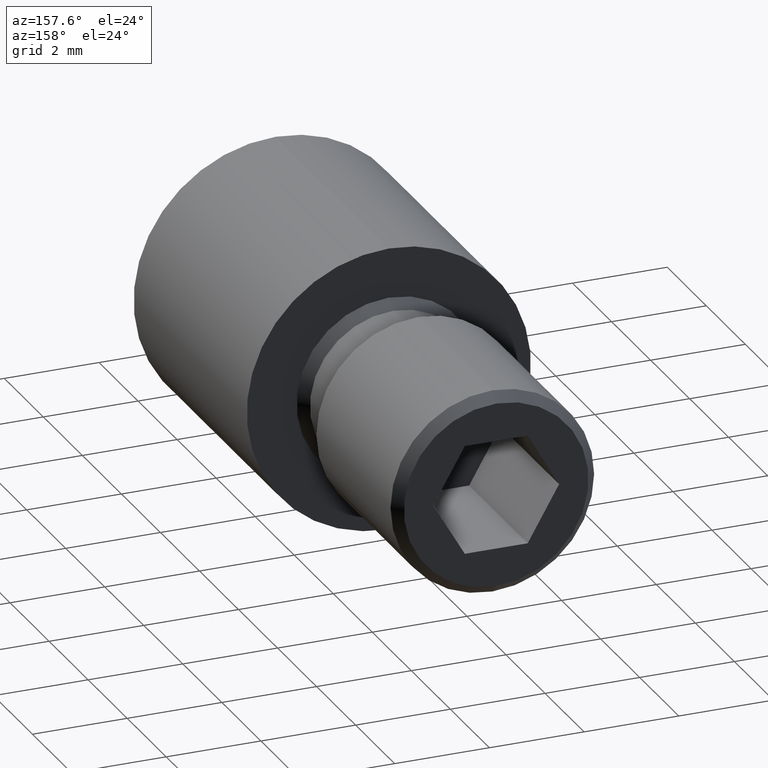
[diagram: clean part render]
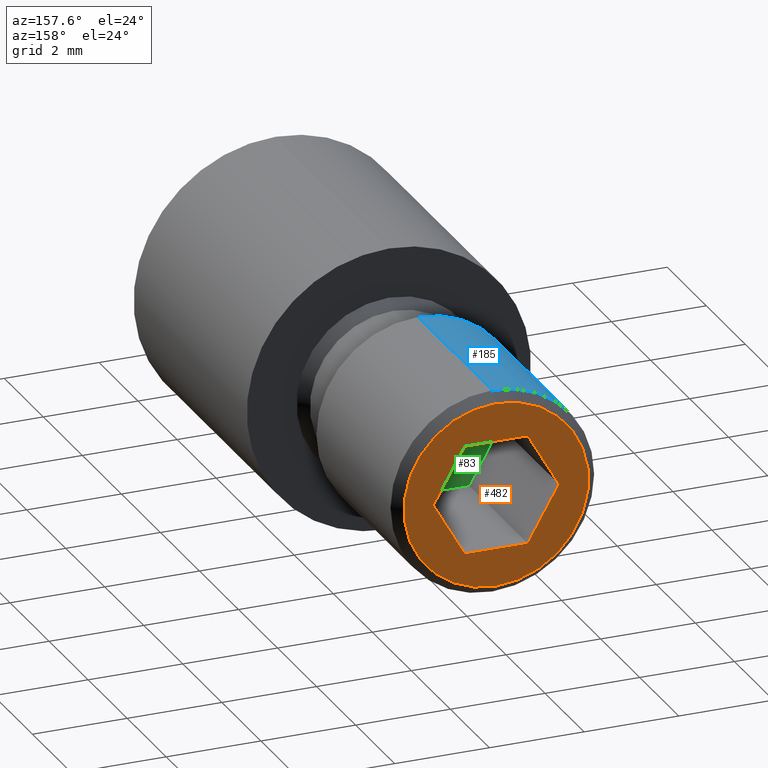
[diagram: same view with three faces highlighted in distinct colors, each labeled with its STEP entity id]
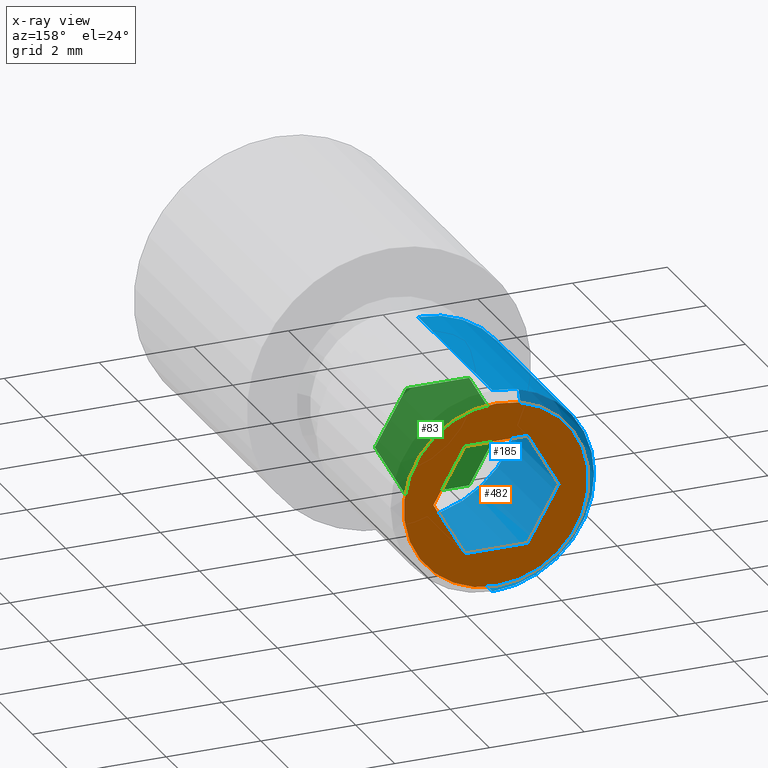
[diagram: x-ray of the same camera — body ghosted, the three highlighted faces saturated]
A machine part, auxiliary view with three faces highlighted in distinct colors.
The next image is the same camera in x-ray (body ghosted, the three faces saturated) — at least one of them is partly hidden behind the body in this view.
Their STEP definitions:

[orange] entity #482 — the highlighted planar face has unit normal (0, 1, 0).
#8 = DIRECTION ( 'NONE',  ( 0.0000000000000000000, 0.0000000000000000000, 1.000000000000000000 ) ) ;
#13 = VERTEX_POINT ( 'NONE', #26 ) ;
#23 = VERTEX_POINT ( 'NONE', #701 ) ;
#24 = DIRECTION ( 'NONE',  ( -0.4999999999999998300, 0.0000000000000000000, 0.8660254037844387100 ) ) ;
#26 = CARTESIAN_POINT ( 'NONE',  ( 1.327905619136139800, 11.50000000000000000, -2.080547780227561100E-016 ) ) ;
#37 = VERTEX_POINT ( 'NONE', #609 ) ;
#66 = CARTESIAN_POINT ( 'NONE',  ( 1.327905619136139800, 11.50000000000000000, -2.080547780227561100E-016 ) ) ;
#67 = PLANE ( 'NONE',  #891 ) ;
#86 = DIRECTION ( 'NONE',  ( 0.0000000000000000000, 1.000000000000000000, 0.0000000000000000000 ) ) ;
#92 = DIRECTION ( 'NONE',  ( 0.0000000000000000000, 1.000000000000000000, 0.0000000000000000000 ) ) ;
#115 = CIRCLE ( 'NONE', #762, 1.950000000000000400 ) ;
#116 = DIRECTION ( 'NONE',  ( 0.4999999999999998900, 0.0000000000000000000, 0.8660254037844387100 ) ) ;
#137 = DIRECTION ( 'NONE',  ( -0.4999999999999998900, 0.0000000000000000000, -0.8660254037844387100 ) ) ;
#154 = DIRECTION ( 'NONE',  ( 0.0000000000000000000, -0.0000000000000000000, 1.000000000000000000 ) ) ;
#166 = ORIENTED_EDGE ( 'NONE', *, *, #613, .F. ) ;
#177 = CARTESIAN_POINT ( 'NONE',  ( 0.0000000000000000000, 11.50000000000000000, 0.0000000000000000000 ) ) ;
#188 = CARTESIAN_POINT ( 'NONE',  ( -0.6639528095680696800, 11.50000000000000000, 1.150000000000000100 ) ) ;
#200 = EDGE_CURVE ( 'NONE', #426, #37, #937, .T. ) ;
#216 = ORIENTED_EDGE ( 'NONE', *, *, #200, .T. ) ;
#218 = CARTESIAN_POINT ( 'NONE',  ( 0.6639528095680703500, 11.50000000000000000, -1.150000000000000100 ) ) ;
#224 = VERTEX_POINT ( 'NONE', #188 ) ;
#260 = VECTOR ( 'NONE', #137, 1000.000000000000000 ) ;
#285 = VECTOR ( 'NONE', #116, 1000.000000000000000 ) ;
#293 = VECTOR ( 'NONE', #24, 1000.000000000000000 ) ;
#340 = FACE_BOUND ( 'NONE', #884, .T. ) ;
#356 = ORIENTED_EDGE ( 'NONE', *, *, #886, .F. ) ;
#358 = CARTESIAN_POINT ( 'NONE',  ( -0.6639528095680691200, 11.50000000000000000, -1.150000000000000800 ) ) ;
#381 = CARTESIAN_POINT ( 'NONE',  ( 0.0000000000000000000, 11.50000000000000000, 0.0000000000000000000 ) ) ;
#412 = ORIENTED_EDGE ( 'NONE', *, *, #803, .F. ) ;
#426 = VERTEX_POINT ( 'NONE', #878 ) ;
#461 = ORIENTED_EDGE ( 'NONE', *, *, #683, .F. ) ;
#470 = ORIENTED_EDGE ( 'NONE', *, *, #473, .T. ) ;
#472 = CARTESIAN_POINT ( 'NONE',  ( 0.6639528095680696800, 11.50000000000000000, 1.150000000000000600 ) ) ;
#473 = EDGE_CURVE ( 'NONE', #37, #426, #115, .T. ) ;
#478 = LINE ( 'NONE', #625, #285 ) ;
#480 = DIRECTION ( 'NONE',  ( 0.0000000000000000000, 1.000000000000000000, 0.0000000000000000000 ) ) ;
#482 = ADVANCED_FACE ( 'NONE', ( #870, #340 ), #67, .T. ) ;
#493 = VECTOR ( 'NONE', #796, 1000.000000000000000 ) ;
#501 = EDGE_CURVE ( 'NONE', #224, #743, #709, .T. ) ;
#508 = LINE ( 'NONE', #786, #708 ) ;
#531 = DIRECTION ( 'NONE',  ( 1.000000000000000000, 0.0000000000000000000, 3.265901301602519900E-016 ) ) ;
#550 = LINE ( 'NONE', #66, #260 ) ;
#604 = LINE ( 'NONE', #676, #293 ) ;
#609 = CARTESIAN_POINT ( 'NONE',  ( 0.0000000000000000000, 11.50000000000000000, -1.950000000000000400 ) ) ;
#613 = EDGE_CURVE ( 'NONE', #814, #863, #604, .T. ) ;
#625 = CARTESIAN_POINT ( 'NONE',  ( -1.327905619136139100, 11.50000000000000000, 1.526590741648259500E-016 ) ) ;
#630 = DIRECTION ( 'NONE',  ( 0.0000000000000000000, 0.0000000000000000000, 1.000000000000000000 ) ) ;
#668 = ORIENTED_EDGE ( 'NONE', *, *, #501, .F. ) ;
#676 = CARTESIAN_POINT ( 'NONE',  ( -0.6639528095680691200, 11.50000000000000000, -1.150000000000000800 ) ) ;
#683 = EDGE_CURVE ( 'NONE', #863, #224, #478, .T. ) ;
#687 = ORIENTED_EDGE ( 'NONE', *, *, #817, .F. ) ;
#701 = CARTESIAN_POINT ( 'NONE',  ( 0.6639528095680703500, 11.50000000000000000, -1.150000000000000100 ) ) ;
#708 = VECTOR ( 'NONE', #932, 1000.000000000000100 ) ;
#709 = LINE ( 'NONE', #816, #880 ) ;
#721 = CARTESIAN_POINT ( 'NONE',  ( -1.327905619136139100, 11.50000000000000000, 1.526590741648259500E-016 ) ) ;
#743 = VERTEX_POINT ( 'NONE', #472 ) ;
#762 = AXIS2_PLACEMENT_3D ( 'NONE', #818, #86, #8 ) ;
#784 = AXIS2_PLACEMENT_3D ( 'NONE', #177, #480, #630 ) ;
#786 = CARTESIAN_POINT ( 'NONE',  ( 0.6639528095680696800, 11.50000000000000000, 1.150000000000000600 ) ) ;
#796 = DIRECTION ( 'NONE',  ( -1.000000000000000000, 0.0000000000000000000, -4.898851952403779800E-016 ) ) ;
#803 = EDGE_CURVE ( 'NONE', #743, #13, #508, .T. ) ;
#814 = VERTEX_POINT ( 'NONE', #358 ) ;
#816 = CARTESIAN_POINT ( 'NONE',  ( -0.6639528095680696800, 11.50000000000000000, 1.150000000000000100 ) ) ;
#817 = EDGE_CURVE ( 'NONE', #23, #814, #842, .T. ) ;
#818 = CARTESIAN_POINT ( 'NONE',  ( 0.0000000000000000000, 11.50000000000000000, 0.0000000000000000000 ) ) ;
#842 = LINE ( 'NONE', #218, #493 ) ;
#863 = VERTEX_POINT ( 'NONE', #721 ) ;
#870 = FACE_OUTER_BOUND ( 'NONE', #904, .T. ) ;
#878 = CARTESIAN_POINT ( 'NONE',  ( 2.510525938252074200E-016, 11.50000000000000000, 1.950000000000000400 ) ) ;
#880 = VECTOR ( 'NONE', #531, 1000.000000000000000 ) ;
#884 = EDGE_LOOP ( 'NONE', ( #356, #412, #668, #461, #166, #687 ) ) ;
#886 = EDGE_CURVE ( 'NONE', #13, #23, #550, .T. ) ;
#891 = AXIS2_PLACEMENT_3D ( 'NONE', #381, #92, #154 ) ;
#904 = EDGE_LOOP ( 'NONE', ( #470, #216 ) ) ;
#932 = DIRECTION ( 'NONE',  ( 0.4999999999999999400, 0.0000000000000000000, -0.8660254037844386000 ) ) ;
#937 = CIRCLE ( 'NONE', #784, 1.950000000000000400 ) ;

[blue] entity #185 — the highlighted cylindrical surface (partial cylindrical patch) has radius 2.15 mm, axis along (-0, -1, -0).
#10 = CYLINDRICAL_SURFACE ( 'NONE', #178, 2.149999999999999900 ) ;
#11 = AXIS2_PLACEMENT_3D ( 'NONE', #825, #897, #20 ) ;
#12 = VERTEX_POINT ( 'NONE', #388 ) ;
#14 = VERTEX_POINT ( 'NONE', #685 ) ;
#20 = DIRECTION ( 'NONE',  ( 0.0000000000000000000, 0.0000000000000000000, 1.000000000000000000 ) ) ;
#32 = ORIENTED_EDGE ( 'NONE', *, *, #726, .F. ) ;
#59 = LINE ( 'NONE', #261, #644 ) ;
#178 = AXIS2_PLACEMENT_3D ( 'NONE', #402, #907, #849 ) ;
#185 = ADVANCED_FACE ( 'NONE', ( #607 ), #10, .T. ) ;
#261 = CARTESIAN_POINT ( 'NONE',  ( 2.632990618166809200E-016, 11.50000000000000000, 2.149999999999999900 ) ) ;
#266 = CARTESIAN_POINT ( 'NONE',  ( 0.0000000000000000000, 11.29999999999999900, -2.149999999999999900 ) ) ;
#276 = CARTESIAN_POINT ( 'NONE',  ( 0.0000000000000000000, 7.500000000000000000, 0.0000000000000000000 ) ) ;
#280 = DIRECTION ( 'NONE',  ( 0.0000000000000000000, 0.0000000000000000000, 1.000000000000000000 ) ) ;
#297 = EDGE_CURVE ( 'NONE', #14, #851, #684, .T. ) ;
#309 = EDGE_LOOP ( 'NONE', ( #32, #427, #864, #792 ) ) ;
#346 = VERTEX_POINT ( 'NONE', #266 ) ;
#388 = CARTESIAN_POINT ( 'NONE',  ( 2.632990618166809200E-016, 11.29999999999999900, 2.149999999999999900 ) ) ;
#402 = CARTESIAN_POINT ( 'NONE',  ( 0.0000000000000000000, 11.50000000000000000, 0.0000000000000000000 ) ) ;
#420 = CIRCLE ( 'NONE', #11, 2.149999999999999900 ) ;
#425 = DIRECTION ( 'NONE',  ( 0.0000000000000000000, 1.000000000000000000, 0.0000000000000000000 ) ) ;
#427 = ORIENTED_EDGE ( 'NONE', *, *, #577, .T. ) ;
#441 = AXIS2_PLACEMENT_3D ( 'NONE', #276, #425, #280 ) ;
#460 = DIRECTION ( 'NONE',  ( -0.0000000000000000000, -1.000000000000000000, -0.0000000000000000000 ) ) ;
#543 = CARTESIAN_POINT ( 'NONE',  ( 0.0000000000000000000, 11.50000000000000000, -2.149999999999999900 ) ) ;
#569 = CARTESIAN_POINT ( 'NONE',  ( 2.632990618166809200E-016, 7.500000000000000000, 2.149999999999999900 ) ) ;
#577 = EDGE_CURVE ( 'NONE', #12, #346, #420, .T. ) ;
#607 = FACE_OUTER_BOUND ( 'NONE', #309, .T. ) ;
#638 = DIRECTION ( 'NONE',  ( -0.0000000000000000000, -1.000000000000000000, -0.0000000000000000000 ) ) ;
#644 = VECTOR ( 'NONE', #638, 1000.000000000000000 ) ;
#671 = EDGE_CURVE ( 'NONE', #346, #14, #674, .T. ) ;
#674 = LINE ( 'NONE', #543, #819 ) ;
#684 = CIRCLE ( 'NONE', #441, 2.149999999999999900 ) ;
#685 = CARTESIAN_POINT ( 'NONE',  ( 0.0000000000000000000, 7.500000000000000000, -2.149999999999999900 ) ) ;
#726 = EDGE_CURVE ( 'NONE', #12, #851, #59, .T. ) ;
#792 = ORIENTED_EDGE ( 'NONE', *, *, #297, .T. ) ;
#819 = VECTOR ( 'NONE', #460, 1000.000000000000000 ) ;
#825 = CARTESIAN_POINT ( 'NONE',  ( 0.0000000000000000000, 11.29999999999999900, 0.0000000000000000000 ) ) ;
#849 = DIRECTION ( 'NONE',  ( 0.0000000000000000000, 0.0000000000000000000, -1.000000000000000000 ) ) ;
#851 = VERTEX_POINT ( 'NONE', #569 ) ;
#864 = ORIENTED_EDGE ( 'NONE', *, *, #671, .T. ) ;
#897 = DIRECTION ( 'NONE',  ( 0.0000000000000000000, -1.000000000000000000, 0.0000000000000000000 ) ) ;
#907 = DIRECTION ( 'NONE',  ( -0.0000000000000000000, -1.000000000000000000, -0.0000000000000000000 ) ) ;

[green] entity #83 — the highlighted planar face has unit normal (0, 1, 0).
#2 = ORIENTED_EDGE ( 'NONE', *, *, #275, .T. ) ;
#53 = CARTESIAN_POINT ( 'NONE',  ( 0.6639528095680703500, 8.500000000000000000, -1.150000000000000100 ) ) ;
#55 = DIRECTION ( 'NONE',  ( 0.0000000000000000000, -0.0000000000000000000, 1.000000000000000000 ) ) ;
#65 = DIRECTION ( 'NONE',  ( 1.000000000000000000, 0.0000000000000000000, 3.265901301602519900E-016 ) ) ;
#72 = VERTEX_POINT ( 'NONE', #636 ) ;
#83 = ADVANCED_FACE ( 'NONE', ( #151 ), #487, .T. ) ;
#107 = EDGE_CURVE ( 'NONE', #153, #72, #376, .T. ) ;
#113 = CARTESIAN_POINT ( 'NONE',  ( 0.6639528095680703500, 8.500000000000000000, -1.150000000000000100 ) ) ;
#120 = DIRECTION ( 'NONE',  ( -0.4999999999999998300, 0.0000000000000000000, 0.8660254037844387100 ) ) ;
#143 = VECTOR ( 'NONE', #894, 1000.000000000000000 ) ;
#151 = FACE_OUTER_BOUND ( 'NONE', #589, .T. ) ;
#153 = VERTEX_POINT ( 'NONE', #256 ) ;
#174 = VERTEX_POINT ( 'NONE', #841 ) ;
#181 = EDGE_CURVE ( 'NONE', #369, #153, #572, .T. ) ;
#191 = DIRECTION ( 'NONE',  ( 0.0000000000000000000, 1.000000000000000000, 0.0000000000000000000 ) ) ;
#251 = VERTEX_POINT ( 'NONE', #619 ) ;
#256 = CARTESIAN_POINT ( 'NONE',  ( -0.6639528095680691200, 8.500000000000000000, -1.150000000000000800 ) ) ;
#258 = CARTESIAN_POINT ( 'NONE',  ( -0.6639528095680691200, 8.500000000000000000, -1.150000000000000800 ) ) ;
#275 = EDGE_CURVE ( 'NONE', #744, #369, #881, .T. ) ;
#286 = VECTOR ( 'NONE', #503, 1000.000000000000000 ) ;
#363 = LINE ( 'NONE', #488, #859 ) ;
#369 = VERTEX_POINT ( 'NONE', #53 ) ;
#373 = EDGE_CURVE ( 'NONE', #174, #251, #820, .T. ) ;
#376 = LINE ( 'NONE', #258, #861 ) ;
#395 = ORIENTED_EDGE ( 'NONE', *, *, #373, .T. ) ;
#397 = CARTESIAN_POINT ( 'NONE',  ( 1.327905619136139800, 8.500000000000000000, -2.080547780227561100E-016 ) ) ;
#415 = ORIENTED_EDGE ( 'NONE', *, *, #181, .T. ) ;
#421 = AXIS2_PLACEMENT_3D ( 'NONE', #770, #191, #55 ) ;
#448 = CARTESIAN_POINT ( 'NONE',  ( -1.327905619136139100, 8.500000000000000000, 1.526590741648259500E-016 ) ) ;
#451 = ORIENTED_EDGE ( 'NONE', *, *, #492, .T. ) ;
#487 = PLANE ( 'NONE',  #421 ) ;
#488 = CARTESIAN_POINT ( 'NONE',  ( 0.6639528095680696800, 8.500000000000000000, 1.150000000000000600 ) ) ;
#492 = EDGE_CURVE ( 'NONE', #72, #174, #529, .T. ) ;
#495 = VECTOR ( 'NONE', #65, 1000.000000000000000 ) ;
#503 = DIRECTION ( 'NONE',  ( -0.4999999999999998900, 0.0000000000000000000, -0.8660254037844387100 ) ) ;
#529 = LINE ( 'NONE', #448, #143 ) ;
#546 = ORIENTED_EDGE ( 'NONE', *, *, #703, .T. ) ;
#563 = DIRECTION ( 'NONE',  ( 0.4999999999999999400, 0.0000000000000000000, -0.8660254037844386000 ) ) ;
#572 = LINE ( 'NONE', #113, #742 ) ;
#589 = EDGE_LOOP ( 'NONE', ( #2, #415, #735, #451, #395, #546 ) ) ;
#619 = CARTESIAN_POINT ( 'NONE',  ( 0.6639528095680696800, 8.500000000000000000, 1.150000000000000600 ) ) ;
#636 = CARTESIAN_POINT ( 'NONE',  ( -1.327905619136139100, 8.500000000000000000, 1.526590741648259500E-016 ) ) ;
#703 = EDGE_CURVE ( 'NONE', #251, #744, #363, .T. ) ;
#735 = ORIENTED_EDGE ( 'NONE', *, *, #107, .T. ) ;
#742 = VECTOR ( 'NONE', #919, 1000.000000000000000 ) ;
#744 = VERTEX_POINT ( 'NONE', #397 ) ;
#770 = CARTESIAN_POINT ( 'NONE',  ( 0.6639528095680703500, 8.500000000000000000, -1.150000000000000100 ) ) ;
#820 = LINE ( 'NONE', #944, #495 ) ;
#841 = CARTESIAN_POINT ( 'NONE',  ( -0.6639528095680696800, 8.500000000000000000, 1.150000000000000100 ) ) ;
#859 = VECTOR ( 'NONE', #563, 1000.000000000000100 ) ;
#860 = CARTESIAN_POINT ( 'NONE',  ( 1.327905619136139800, 8.500000000000000000, -2.080547780227561100E-016 ) ) ;
#861 = VECTOR ( 'NONE', #120, 1000.000000000000000 ) ;
#881 = LINE ( 'NONE', #860, #286 ) ;
#894 = DIRECTION ( 'NONE',  ( 0.4999999999999998900, 0.0000000000000000000, 0.8660254037844387100 ) ) ;
#919 = DIRECTION ( 'NONE',  ( -1.000000000000000000, 0.0000000000000000000, -4.898851952403779800E-016 ) ) ;
#944 = CARTESIAN_POINT ( 'NONE',  ( -0.6639528095680696800, 8.500000000000000000, 1.150000000000000100 ) ) ;